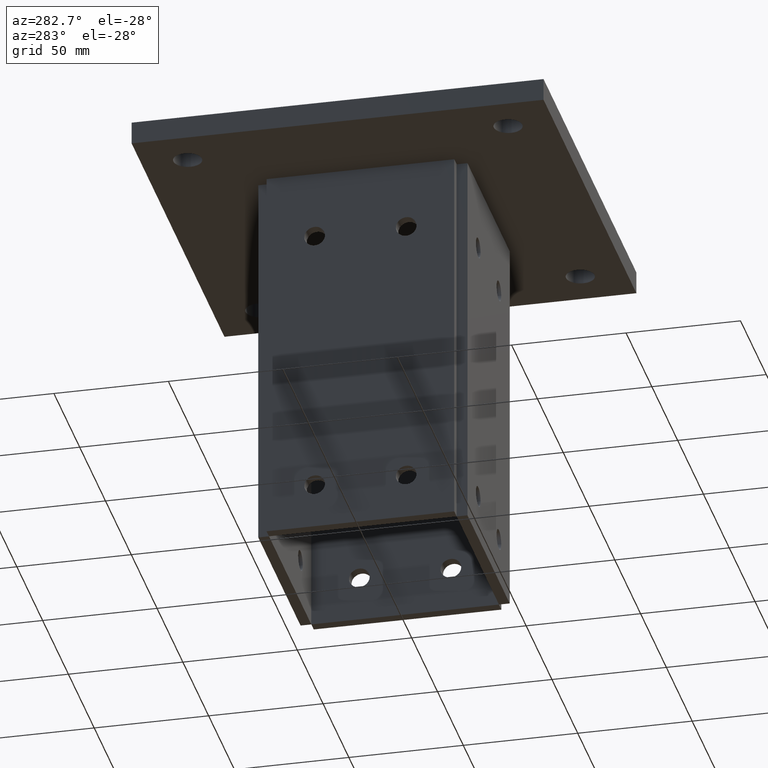
[diagram: clean part render]
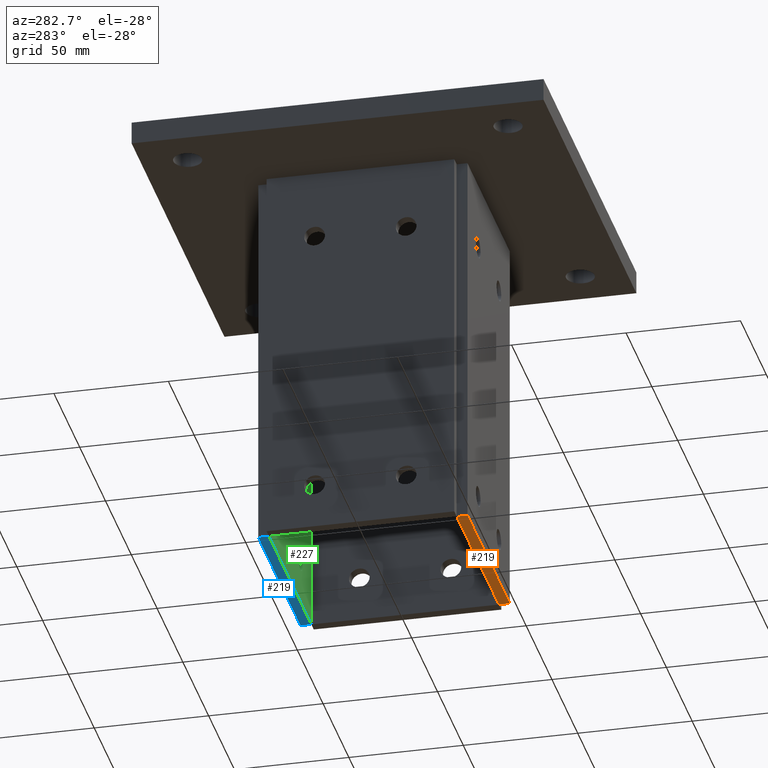
[diagram: same view with three faces highlighted in distinct colors, each labeled with its STEP entity id]
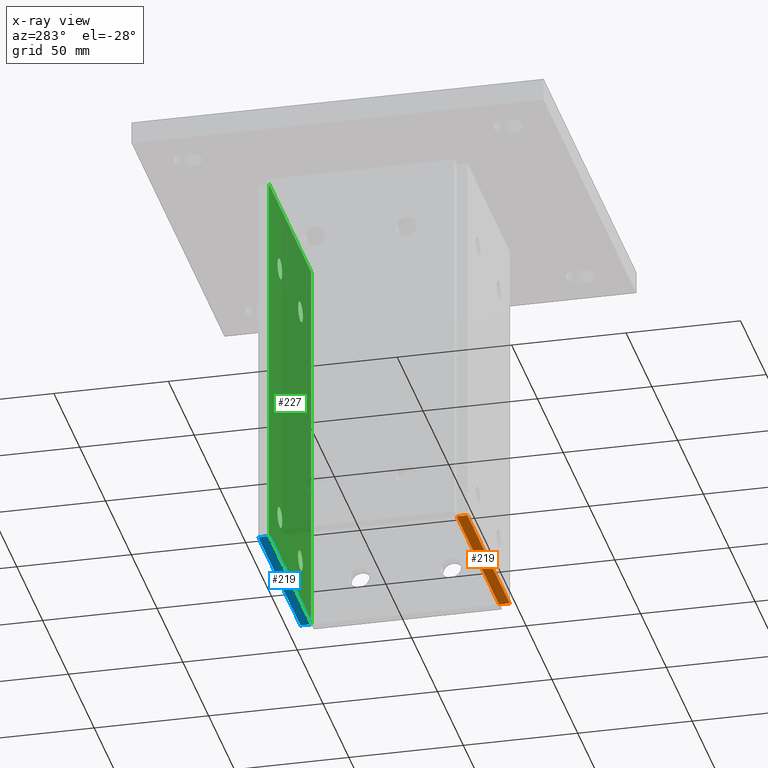
[diagram: x-ray of the same camera — body ghosted, the three highlighted faces saturated]
A machine part, auxiliary view with three faces highlighted in distinct colors.
The next image is the same camera in x-ray (body ghosted, the three faces saturated) — at least one of them is partly hidden behind the body in this view.
Their STEP definitions:

[orange] entity #219 — the highlighted planar face has unit normal (0, 0, 1).
#77 = VERTEX_POINT ( 'NONE', #370 ) ;
#83 = PLANE ( 'NONE',  #818 ) ;
#84 = CARTESIAN_POINT ( 'NONE',  ( -82.00000000000000000, 170.0000000000000000, 0.0000000000000000000 ) ) ;
#85 = DIRECTION ( 'NONE',  ( 0.0000000000000000000, -1.000000000000000000, 0.0000000000000000000 ) ) ;
#86 = DIRECTION ( 'NONE',  ( 1.000000000000000000, 0.0000000000000000000, 0.0000000000000000000 ) ) ;
#126 = VERTEX_POINT ( 'NONE', #380 ) ;
#136 = VERTEX_POINT ( 'NONE', #390 ) ;
#187 = CARTESIAN_POINT ( 'NONE',  ( 0.0000000000000000000, 170.0000000000000000, 0.0000000000000000000 ) ) ;
#219 = ADVANCED_FACE ( 'NONE', ( #477 ), #83, .F. ) ;
#251 = VERTEX_POINT ( 'NONE', #187 ) ;
#370 = CARTESIAN_POINT ( 'NONE',  ( 0.0000000000000000000, 170.0000000000000000, 4.700000000000000200 ) ) ;
#380 = CARTESIAN_POINT ( 'NONE',  ( -82.00000000000000000, 170.0000000000000000, 4.700000000000000200 ) ) ;
#390 = CARTESIAN_POINT ( 'NONE',  ( -82.00000000000000000, 170.0000000000000000, 0.0000000000000000000 ) ) ;
#477 = FACE_OUTER_BOUND ( 'NONE', #1194, .T. ) ;
#677 = LINE ( 'NONE', #985, #679 ) ;
#679 = VECTOR ( 'NONE', #986, 1000.000000000000000 ) ;
#713 = LINE ( 'NONE', #993, #716 ) ;
#716 = VECTOR ( 'NONE', #994, 1000.000000000000000 ) ;
#717 = LINE ( 'NONE', #995, #721 ) ;
#721 = VECTOR ( 'NONE', #996, 1000.000000000000000 ) ;
#724 = LINE ( 'NONE', #997, #727 ) ;
#727 = VECTOR ( 'NONE', #998, 1000.000000000000000 ) ;
#818 = AXIS2_PLACEMENT_3D ( 'NONE', #84, #85, #86 ) ;
#830 = EDGE_CURVE ( 'NONE', #251, #77, #677, .T. ) ;
#834 = EDGE_CURVE ( 'NONE', #136, #126, #713, .T. ) ;
#835 = EDGE_CURVE ( 'NONE', #77, #126, #717, .T. ) ;
#836 = EDGE_CURVE ( 'NONE', #251, #136, #724, .T. ) ;
#985 = CARTESIAN_POINT ( 'NONE',  ( 0.0000000000000000000, 170.0000000000000000, 2.350000000000000100 ) ) ;
#986 = DIRECTION ( 'NONE',  ( 0.0000000000000000000, 0.0000000000000000000, 1.000000000000000000 ) ) ;
#993 = CARTESIAN_POINT ( 'NONE',  ( -82.00000000000000000, 170.0000000000000000, 2.350000000000000100 ) ) ;
#994 = DIRECTION ( 'NONE',  ( 0.0000000000000000000, 0.0000000000000000000, 1.000000000000000000 ) ) ;
#995 = CARTESIAN_POINT ( 'NONE',  ( -41.00000000000000000, 170.0000000000000000, 4.700000000000000200 ) ) ;
#996 = DIRECTION ( 'NONE',  ( -1.000000000000000000, -0.0000000000000000000, -0.0000000000000000000 ) ) ;
#997 = CARTESIAN_POINT ( 'NONE',  ( -41.00000000000000000, 170.0000000000000000, 0.0000000000000000000 ) ) ;
#998 = DIRECTION ( 'NONE',  ( -1.000000000000000000, -0.0000000000000000000, -0.0000000000000000000 ) ) ;
#1194 = EDGE_LOOP ( 'NONE', ( #1276, #1275, #1274, #1273 ) ) ;
#1273 = ORIENTED_EDGE ( 'NONE', *, *, #836, .T. ) ;
#1274 = ORIENTED_EDGE ( 'NONE', *, *, #830, .F. ) ;
#1275 = ORIENTED_EDGE ( 'NONE', *, *, #835, .F. ) ;
#1276 = ORIENTED_EDGE ( 'NONE', *, *, #834, .T. ) ;

[blue] entity #219 — the highlighted planar face has unit normal (0, 0, 1).
#77 = VERTEX_POINT ( 'NONE', #370 ) ;
#83 = PLANE ( 'NONE',  #818 ) ;
#84 = CARTESIAN_POINT ( 'NONE',  ( -82.00000000000000000, 170.0000000000000000, 0.0000000000000000000 ) ) ;
#85 = DIRECTION ( 'NONE',  ( 0.0000000000000000000, -1.000000000000000000, 0.0000000000000000000 ) ) ;
#86 = DIRECTION ( 'NONE',  ( 1.000000000000000000, 0.0000000000000000000, 0.0000000000000000000 ) ) ;
#126 = VERTEX_POINT ( 'NONE', #380 ) ;
#136 = VERTEX_POINT ( 'NONE', #390 ) ;
#187 = CARTESIAN_POINT ( 'NONE',  ( 0.0000000000000000000, 170.0000000000000000, 0.0000000000000000000 ) ) ;
#219 = ADVANCED_FACE ( 'NONE', ( #477 ), #83, .F. ) ;
#251 = VERTEX_POINT ( 'NONE', #187 ) ;
#370 = CARTESIAN_POINT ( 'NONE',  ( 0.0000000000000000000, 170.0000000000000000, 4.700000000000000200 ) ) ;
#380 = CARTESIAN_POINT ( 'NONE',  ( -82.00000000000000000, 170.0000000000000000, 4.700000000000000200 ) ) ;
#390 = CARTESIAN_POINT ( 'NONE',  ( -82.00000000000000000, 170.0000000000000000, 0.0000000000000000000 ) ) ;
#477 = FACE_OUTER_BOUND ( 'NONE', #1194, .T. ) ;
#677 = LINE ( 'NONE', #985, #679 ) ;
#679 = VECTOR ( 'NONE', #986, 1000.000000000000000 ) ;
#713 = LINE ( 'NONE', #993, #716 ) ;
#716 = VECTOR ( 'NONE', #994, 1000.000000000000000 ) ;
#717 = LINE ( 'NONE', #995, #721 ) ;
#721 = VECTOR ( 'NONE', #996, 1000.000000000000000 ) ;
#724 = LINE ( 'NONE', #997, #727 ) ;
#727 = VECTOR ( 'NONE', #998, 1000.000000000000000 ) ;
#818 = AXIS2_PLACEMENT_3D ( 'NONE', #84, #85, #86 ) ;
#830 = EDGE_CURVE ( 'NONE', #251, #77, #677, .T. ) ;
#834 = EDGE_CURVE ( 'NONE', #136, #126, #713, .T. ) ;
#835 = EDGE_CURVE ( 'NONE', #77, #126, #717, .T. ) ;
#836 = EDGE_CURVE ( 'NONE', #251, #136, #724, .T. ) ;
#985 = CARTESIAN_POINT ( 'NONE',  ( 0.0000000000000000000, 170.0000000000000000, 2.350000000000000100 ) ) ;
#986 = DIRECTION ( 'NONE',  ( 0.0000000000000000000, 0.0000000000000000000, 1.000000000000000000 ) ) ;
#993 = CARTESIAN_POINT ( 'NONE',  ( -82.00000000000000000, 170.0000000000000000, 2.350000000000000100 ) ) ;
#994 = DIRECTION ( 'NONE',  ( 0.0000000000000000000, 0.0000000000000000000, 1.000000000000000000 ) ) ;
#995 = CARTESIAN_POINT ( 'NONE',  ( -41.00000000000000000, 170.0000000000000000, 4.700000000000000200 ) ) ;
#996 = DIRECTION ( 'NONE',  ( -1.000000000000000000, -0.0000000000000000000, -0.0000000000000000000 ) ) ;
#997 = CARTESIAN_POINT ( 'NONE',  ( -41.00000000000000000, 170.0000000000000000, 0.0000000000000000000 ) ) ;
#998 = DIRECTION ( 'NONE',  ( -1.000000000000000000, -0.0000000000000000000, -0.0000000000000000000 ) ) ;
#1194 = EDGE_LOOP ( 'NONE', ( #1276, #1275, #1274, #1273 ) ) ;
#1273 = ORIENTED_EDGE ( 'NONE', *, *, #836, .T. ) ;
#1274 = ORIENTED_EDGE ( 'NONE', *, *, #830, .F. ) ;
#1275 = ORIENTED_EDGE ( 'NONE', *, *, #835, .F. ) ;
#1276 = ORIENTED_EDGE ( 'NONE', *, *, #834, .T. ) ;

[green] entity #227 — the highlighted planar face has unit normal (0, 1, 0).
#16 = AXIS2_PLACEMENT_3D ( 'NONE', #1009, #1010, #1011 ) ;
#22 = DIRECTION ( 'NONE',  ( 1.000000000000000000, 0.0000000000000000000, 0.0000000000000000000 ) ) ;
#23 = CARTESIAN_POINT ( 'NONE',  ( -21.00000000000000000, 150.0000000000000000, 0.0000000000000000000 ) ) ;
#24 = DIRECTION ( 'NONE',  ( -0.0000000000000000000, 0.0000000000000000000, -1.000000000000000000 ) ) ;
#25 = DIRECTION ( 'NONE',  ( 1.000000000000000000, 0.0000000000000000000, 0.0000000000000000000 ) ) ;
#58 = VERTEX_POINT ( 'NONE', #252 ) ;
#59 = VERTEX_POINT ( 'NONE', #246 ) ;
#61 = VERTEX_POINT ( 'NONE', #359 ) ;
#65 = VERTEX_POINT ( 'NONE', #889 ) ;
#66 = VERTEX_POINT ( 'NONE', #890 ) ;
#75 = VERTEX_POINT ( 'NONE', #368 ) ;
#78 = VERTEX_POINT ( 'NONE', #371 ) ;
#104 = PLANE ( 'NONE',  #812 ) ;
#105 = CARTESIAN_POINT ( 'NONE',  ( -82.00000000000000000, 0.0000000000000000000, 0.0000000000000000000 ) ) ;
#106 = DIRECTION ( 'NONE',  ( 0.0000000000000000000, 0.0000000000000000000, 1.000000000000000000 ) ) ;
#107 = DIRECTION ( 'NONE',  ( 1.000000000000000000, 0.0000000000000000000, 0.0000000000000000000 ) ) ;
#136 = VERTEX_POINT ( 'NONE', #390 ) ;
#139 = VERTEX_POINT ( 'NONE', #393 ) ;
#140 = DIRECTION ( 'NONE',  ( -0.0000000000000000000, 0.0000000000000000000, -1.000000000000000000 ) ) ;
#141 = DIRECTION ( 'NONE',  ( 1.000000000000000000, 0.0000000000000000000, 0.0000000000000000000 ) ) ;
#145 = CARTESIAN_POINT ( 'NONE',  ( -61.00000000000000000, 150.0000000000000000, 0.0000000000000000000 ) ) ;
#146 = DIRECTION ( 'NONE',  ( -0.0000000000000000000, 0.0000000000000000000, -1.000000000000000000 ) ) ;
#147 = DIRECTION ( 'NONE',  ( 1.000000000000000000, 0.0000000000000000000, 0.0000000000000000000 ) ) ;
#148 = CARTESIAN_POINT ( 'NONE',  ( -21.00000000000000000, 150.0000000000000000, 0.0000000000000000000 ) ) ;
#149 = DIRECTION ( 'NONE',  ( -0.0000000000000000000, 0.0000000000000000000, -1.000000000000000000 ) ) ;
#150 = DIRECTION ( 'NONE',  ( 1.000000000000000000, 0.0000000000000000000, 0.0000000000000000000 ) ) ;
#164 = CARTESIAN_POINT ( 'NONE',  ( -61.00000000000000000, 150.0000000000000000, 0.0000000000000000000 ) ) ;
#165 = DIRECTION ( 'NONE',  ( -0.0000000000000000000, 0.0000000000000000000, -1.000000000000000000 ) ) ;
#166 = DIRECTION ( 'NONE',  ( 1.000000000000000000, 0.0000000000000000000, 0.0000000000000000000 ) ) ;
#175 = CARTESIAN_POINT ( 'NONE',  ( -21.00000000000000000, 30.00000000000000000, 0.0000000000000000000 ) ) ;
#176 = DIRECTION ( 'NONE',  ( -0.0000000000000000000, 0.0000000000000000000, -1.000000000000000000 ) ) ;
#183 = CARTESIAN_POINT ( 'NONE',  ( -16.50000000000000000, 30.00000000000000000, 0.0000000000000000000 ) ) ;
#184 = CARTESIAN_POINT ( 'NONE',  ( -65.50000000000000000, 30.00000000000000000, 0.0000000000000000000 ) ) ;
#187 = CARTESIAN_POINT ( 'NONE',  ( 0.0000000000000000000, 170.0000000000000000, 0.0000000000000000000 ) ) ;
#213 = CARTESIAN_POINT ( 'NONE',  ( -21.00000000000000000, 30.00000000000000000, 0.0000000000000000000 ) ) ;
#227 = ADVANCED_FACE ( 'NONE', ( #486, #487, #488, #489, #490 ), #104, .F. ) ;
#246 = CARTESIAN_POINT ( 'NONE',  ( 0.0000000000000000000, 0.0000000000000000000, 0.0000000000000000000 ) ) ;
#247 = VERTEX_POINT ( 'NONE', #183 ) ;
#248 = VERTEX_POINT ( 'NONE', #184 ) ;
#251 = VERTEX_POINT ( 'NONE', #187 ) ;
#252 = CARTESIAN_POINT ( 'NONE',  ( -25.50000000000000400, 150.0000000000000000, 0.0000000000000000000 ) ) ;
#303 = EDGE_CURVE ( 'NONE', #75, #247, #547, .T. ) ;
#305 = EDGE_CURVE ( 'NONE', #65, #61, #549, .T. ) ;
#306 = EDGE_CURVE ( 'NONE', #58, #66, #550, .T. ) ;
#312 = EDGE_CURVE ( 'NONE', #61, #65, #558, .T. ) ;
#316 = EDGE_CURVE ( 'NONE', #247, #75, #563, .T. ) ;
#317 = EDGE_CURVE ( 'NONE', #66, #58, #565, .T. ) ;
#359 = CARTESIAN_POINT ( 'NONE',  ( -56.50000000000000000, 150.0000000000000000, 0.0000000000000000000 ) ) ;
#368 = CARTESIAN_POINT ( 'NONE',  ( -25.50000000000000400, 30.00000000000000000, 0.0000000000000000000 ) ) ;
#371 = CARTESIAN_POINT ( 'NONE',  ( -56.50000000000000000, 30.00000000000000000, 0.0000000000000000000 ) ) ;
#390 = CARTESIAN_POINT ( 'NONE',  ( -82.00000000000000000, 170.0000000000000000, 0.0000000000000000000 ) ) ;
#393 = CARTESIAN_POINT ( 'NONE',  ( -82.00000000000000000, 0.0000000000000000000, 0.0000000000000000000 ) ) ;
#486 = FACE_BOUND ( 'NONE', #1187, .T. ) ;
#487 = FACE_BOUND ( 'NONE', #1186, .T. ) ;
#488 = FACE_BOUND ( 'NONE', #1185, .T. ) ;
#489 = FACE_BOUND ( 'NONE', #1184, .T. ) ;
#490 = FACE_OUTER_BOUND ( 'NONE', #1183, .T. ) ;
#547 = CIRCLE ( 'NONE', #792, 4.500000000000000900 ) ;
#549 = CIRCLE ( 'NONE', #790, 4.499999999999997300 ) ;
#550 = CIRCLE ( 'NONE', #789, 4.500000000000000900 ) ;
#558 = CIRCLE ( 'NONE', #1315, 4.499999999999997300 ) ;
#563 = CIRCLE ( 'NONE', #1312, 4.500000000000000900 ) ;
#565 = CIRCLE ( 'NONE', #1311, 4.500000000000000900 ) ;
#629 = CIRCLE ( 'NONE', #1298, 4.499999999999997300 ) ;
#702 = LINE ( 'NONE', #991, #706 ) ;
#706 = VECTOR ( 'NONE', #992, 1000.000000000000000 ) ;
#724 = LINE ( 'NONE', #997, #727 ) ;
#727 = VECTOR ( 'NONE', #998, 1000.000000000000000 ) ;
#745 = LINE ( 'NONE', #1003, #746 ) ;
#746 = VECTOR ( 'NONE', #1004, 1000.000000000000000 ) ;
#750 = LINE ( 'NONE', #1007, #754 ) ;
#754 = VECTOR ( 'NONE', #1008, 1000.000000000000000 ) ;
#755 = CIRCLE ( 'NONE', #16, 4.499999999999997300 ) ;
#789 = AXIS2_PLACEMENT_3D ( 'NONE', #148, #149, #150 ) ;
#790 = AXIS2_PLACEMENT_3D ( 'NONE', #145, #146, #147 ) ;
#792 = AXIS2_PLACEMENT_3D ( 'NONE', #213, #140, #141 ) ;
#812 = AXIS2_PLACEMENT_3D ( 'NONE', #105, #106, #107 ) ;
#825 = EDGE_CURVE ( 'NONE', #78, #248, #629, .T. ) ;
#833 = EDGE_CURVE ( 'NONE', #59, #251, #702, .T. ) ;
#836 = EDGE_CURVE ( 'NONE', #251, #136, #724, .T. ) ;
#839 = EDGE_CURVE ( 'NONE', #136, #139, #745, .T. ) ;
#841 = EDGE_CURVE ( 'NONE', #139, #59, #750, .T. ) ;
#842 = EDGE_CURVE ( 'NONE', #248, #78, #755, .T. ) ;
#889 = CARTESIAN_POINT ( 'NONE',  ( -65.50000000000000000, 150.0000000000000000, 0.0000000000000000000 ) ) ;
#890 = CARTESIAN_POINT ( 'NONE',  ( -16.50000000000000000, 150.0000000000000000, 0.0000000000000000000 ) ) ;
#972 = CARTESIAN_POINT ( 'NONE',  ( -61.00000000000000000, 30.00000000000000000, 0.0000000000000000000 ) ) ;
#973 = DIRECTION ( 'NONE',  ( -0.0000000000000000000, 0.0000000000000000000, -1.000000000000000000 ) ) ;
#974 = DIRECTION ( 'NONE',  ( 1.000000000000000000, 0.0000000000000000000, 0.0000000000000000000 ) ) ;
#991 = CARTESIAN_POINT ( 'NONE',  ( 0.0000000000000000000, 85.00000000000000000, 0.0000000000000000000 ) ) ;
#992 = DIRECTION ( 'NONE',  ( 0.0000000000000000000, 1.000000000000000000, 0.0000000000000000000 ) ) ;
#997 = CARTESIAN_POINT ( 'NONE',  ( -41.00000000000000000, 170.0000000000000000, 0.0000000000000000000 ) ) ;
#998 = DIRECTION ( 'NONE',  ( -1.000000000000000000, -0.0000000000000000000, -0.0000000000000000000 ) ) ;
#1003 = CARTESIAN_POINT ( 'NONE',  ( -82.00000000000000000, 85.00000000000000000, 0.0000000000000000000 ) ) ;
#1004 = DIRECTION ( 'NONE',  ( -0.0000000000000000000, -1.000000000000000000, -0.0000000000000000000 ) ) ;
#1007 = CARTESIAN_POINT ( 'NONE',  ( -41.00000000000000000, 0.0000000000000000000, 0.0000000000000000000 ) ) ;
#1008 = DIRECTION ( 'NONE',  ( 1.000000000000000000, 0.0000000000000000000, 0.0000000000000000000 ) ) ;
#1009 = CARTESIAN_POINT ( 'NONE',  ( -61.00000000000000000, 30.00000000000000000, 0.0000000000000000000 ) ) ;
#1010 = DIRECTION ( 'NONE',  ( -0.0000000000000000000, 0.0000000000000000000, -1.000000000000000000 ) ) ;
#1011 = DIRECTION ( 'NONE',  ( 1.000000000000000000, 0.0000000000000000000, 0.0000000000000000000 ) ) ;
#1183 = EDGE_LOOP ( 'NONE', ( #1208, #1218, #1219, #1217 ) ) ;
#1184 = EDGE_LOOP ( 'NONE', ( #1207, #1206 ) ) ;
#1185 = EDGE_LOOP ( 'NONE', ( #1205, #1203 ) ) ;
#1186 = EDGE_LOOP ( 'NONE', ( #1202, #1201 ) ) ;
#1187 = EDGE_LOOP ( 'NONE', ( #1204, #1200 ) ) ;
#1200 = ORIENTED_EDGE ( 'NONE', *, *, #305, .F. ) ;
#1201 = ORIENTED_EDGE ( 'NONE', *, *, #306, .F. ) ;
#1202 = ORIENTED_EDGE ( 'NONE', *, *, #317, .F. ) ;
#1203 = ORIENTED_EDGE ( 'NONE', *, *, #842, .F. ) ;
#1204 = ORIENTED_EDGE ( 'NONE', *, *, #312, .F. ) ;
#1205 = ORIENTED_EDGE ( 'NONE', *, *, #825, .F. ) ;
#1206 = ORIENTED_EDGE ( 'NONE', *, *, #303, .F. ) ;
#1207 = ORIENTED_EDGE ( 'NONE', *, *, #316, .F. ) ;
#1208 = ORIENTED_EDGE ( 'NONE', *, *, #841, .F. ) ;
#1217 = ORIENTED_EDGE ( 'NONE', *, *, #833, .F. ) ;
#1218 = ORIENTED_EDGE ( 'NONE', *, *, #839, .F. ) ;
#1219 = ORIENTED_EDGE ( 'NONE', *, *, #836, .F. ) ;
#1298 = AXIS2_PLACEMENT_3D ( 'NONE', #972, #973, #974 ) ;
#1311 = AXIS2_PLACEMENT_3D ( 'NONE', #23, #24, #25 ) ;
#1312 = AXIS2_PLACEMENT_3D ( 'NONE', #175, #176, #22 ) ;
#1315 = AXIS2_PLACEMENT_3D ( 'NONE', #164, #165, #166 ) ;